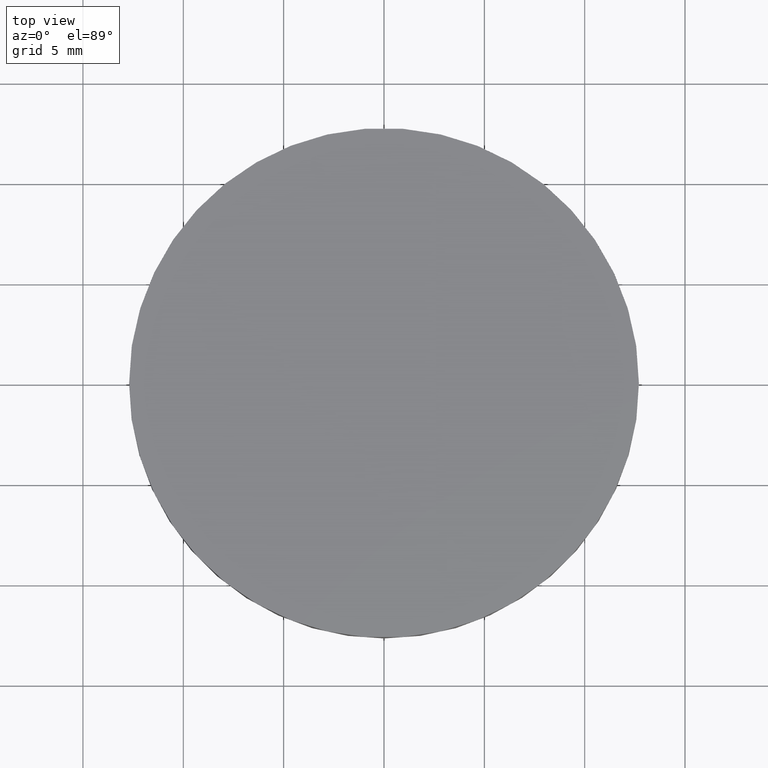
[diagram: clean part render]
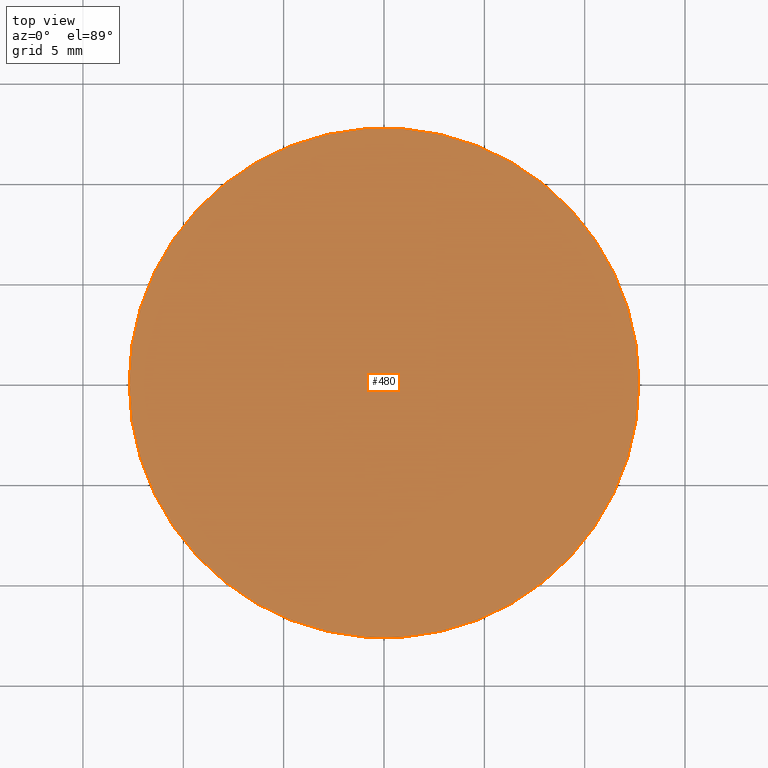
[diagram: same view with one face highlighted and labeled with its STEP entity id]
A machine part, top view. The second image highlights one B-rep face of the part: STEP entity #480.
In plain terms, the highlighted planar face has unit normal (0, 0, 1).
Its self-contained STEP definition (entity closure, byte-faithful):
#17 = AXIS2_PLACEMENT_3D ( 'NONE', #180, #139, #96 ) ;
#22 = FACE_OUTER_BOUND ( 'NONE', #91, .T. ) ;
#26 = ORIENTED_EDGE ( 'NONE', *, *, #443, .F. ) ;
#91 = EDGE_LOOP ( 'NONE', ( #172, #26 ) ) ;
#96 = DIRECTION ( 'NONE',  ( 1.000000000000000000, 0.000000000000000000, -6.829619984160658046E-17 ) ) ;
#134 = CARTESIAN_POINT ( 'NONE',  ( 12.70000000000000107, -8.881784197001250351E-16, 6.159999999999998366 ) ) ;
#139 = DIRECTION ( 'NONE',  ( -6.993530863780509846E-17, -4.890947394265059749E-33, -1.000000000000000000 ) ) ;
#140 = DIRECTION ( 'NONE',  ( 1.000000000000000000, 0.000000000000000000, -6.829619984160658046E-17 ) ) ;
#172 = ORIENTED_EDGE ( 'NONE', *, *, #490, .F. ) ;
#180 = CARTESIAN_POINT ( 'NONE',  ( 1.028282480094215200E-15, -8.881784197001250351E-16, 6.159999999999999254 ) ) ;
#184 = CARTESIAN_POINT ( 'NONE',  ( 1.028282480094215200E-15, -8.881784197001250351E-16, 6.159999999999999254 ) ) ;
#266 = CARTESIAN_POINT ( 'NONE',  ( -12.69999999999999751, 6.671230152170134961E-16, 6.160000000000000142 ) ) ;
#268 = DIRECTION ( 'NONE',  ( 1.000000000000000000, 0.000000000000000000, -0.000000000000000000 ) ) ;
#301 = DIRECTION ( 'NONE',  ( -6.993530863780509846E-17, -4.890947394265059749E-33, -1.000000000000000000 ) ) ;
#313 = VERTEX_POINT ( 'NONE', #266 ) ;
#344 = CIRCLE ( 'NONE', #524, 12.69999999999999929 ) ;
#347 = PLANE ( 'NONE',  #352 ) ;
#352 = AXIS2_PLACEMENT_3D ( 'NONE', #385, #469, #268 ) ;
#385 = CARTESIAN_POINT ( 'NONE',  ( 0.000000000000000000, 26.11199999999999832, 6.160000000000000142 ) ) ;
#443 = EDGE_CURVE ( 'NONE', #313, #452, #532, .T. ) ;
#452 = VERTEX_POINT ( 'NONE', #134 ) ;
#469 = DIRECTION ( 'NONE',  ( 0.000000000000000000, 0.000000000000000000, 1.000000000000000000 ) ) ;
#480 = ADVANCED_FACE ( 'NONE', ( #22 ), #347, .T. ) ;
#490 = EDGE_CURVE ( 'NONE', #452, #313, #344, .T. ) ;
#524 = AXIS2_PLACEMENT_3D ( 'NONE', #184, #301, #140 ) ;
#532 = CIRCLE ( 'NONE', #17, 12.69999999999999929 ) ;